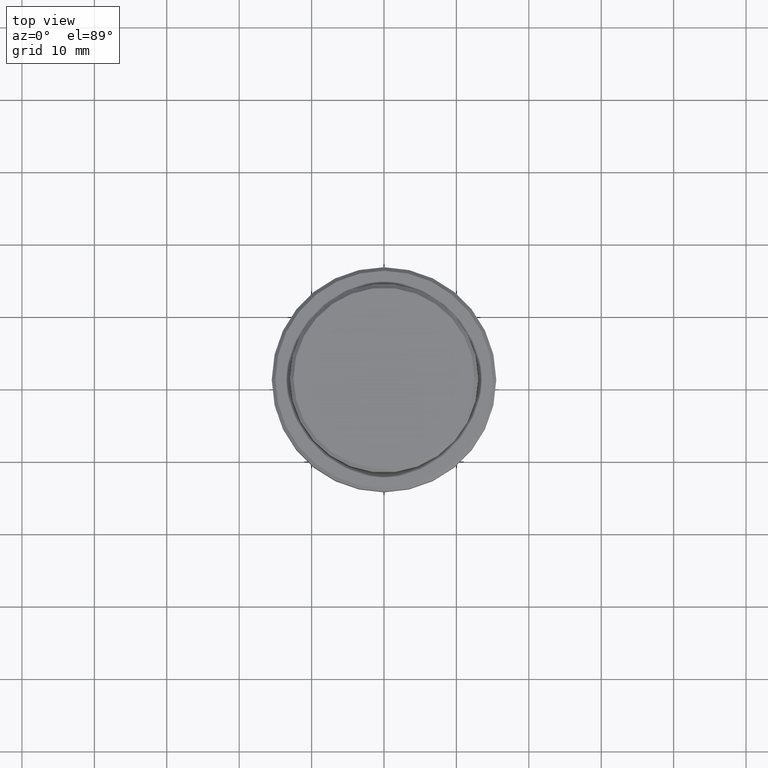
[diagram: clean part render]
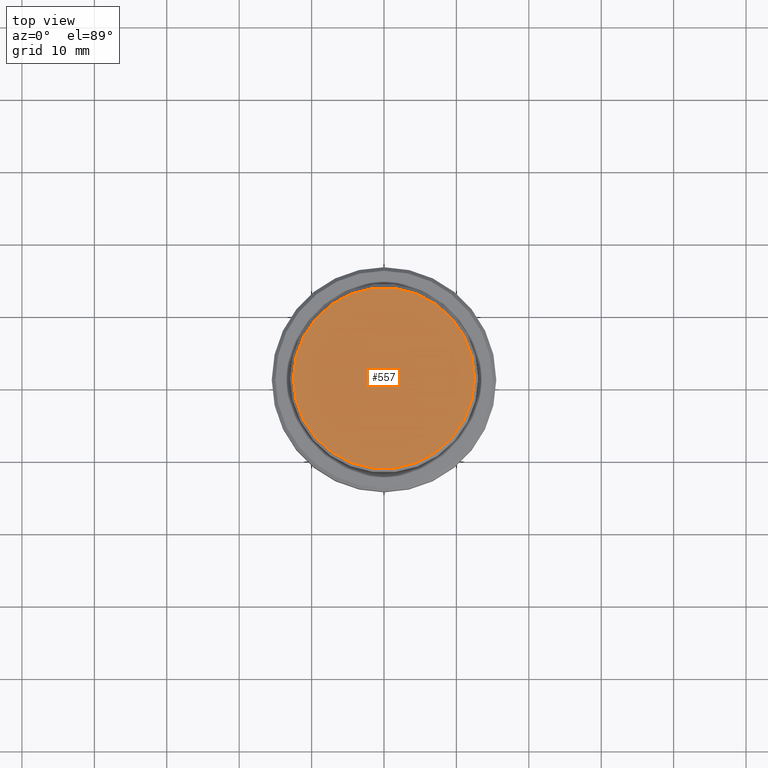
[diagram: same view with one face highlighted and labeled with its STEP entity id]
A machine part, top view. The second image highlights one B-rep face of the part: STEP entity #557.
In plain terms, the highlighted planar face has unit normal (0, -0, 1).
Its self-contained STEP definition (entity closure, byte-faithful):
#38 = EDGE_CURVE ( 'NONE', #674, #69, #932, .T. ) ;
#69 = VERTEX_POINT ( 'NONE', #1391 ) ;
#79 = EDGE_CURVE ( 'NONE', #69, #674, #1203, .T. ) ;
#153 = AXIS2_PLACEMENT_3D ( 'NONE', #1399, #1413, #650 ) ;
#266 = EDGE_LOOP ( 'NONE', ( #412, #324 ) ) ;
#290 = AXIS2_PLACEMENT_3D ( 'NONE', #856, #645, #640 ) ;
#324 = ORIENTED_EDGE ( 'NONE', *, *, #38, .T. ) ;
#412 = ORIENTED_EDGE ( 'NONE', *, *, #79, .T. ) ;
#557 = ADVANCED_FACE ( 'NONE', ( #878 ), #1166, .T. ) ;
#611 = AXIS2_PLACEMENT_3D ( 'NONE', #1390, #1180, #1402 ) ;
#640 = DIRECTION ( 'NONE',  ( 1.000000000000000000, 0.000000000000000000, 0.000000000000000000 ) ) ;
#645 = DIRECTION ( 'NONE',  ( -0.000000000000000000, -0.000000000000000000, 1.000000000000000000 ) ) ;
#650 = DIRECTION ( 'NONE',  ( 1.000000000000000000, 0.000000000000000000, 0.000000000000000000 ) ) ;
#674 = VERTEX_POINT ( 'NONE', #1227 ) ;
#856 = CARTESIAN_POINT ( 'NONE',  ( 0.000000000000000000, 0.000000000000000000, 0.000000000000000000 ) ) ;
#878 = FACE_OUTER_BOUND ( 'NONE', #266, .T. ) ;
#932 = CIRCLE ( 'NONE', #153, 12.50000000000001243 ) ;
#1166 = PLANE ( 'NONE',  #611 ) ;
#1180 = DIRECTION ( 'NONE',  ( 0.000000000000000000, -0.000000000000000000, 1.000000000000000000 ) ) ;
#1203 = CIRCLE ( 'NONE', #290, 12.50000000000001243 ) ;
#1227 = CARTESIAN_POINT ( 'NONE',  ( 12.50000000000001243, 1.561424668912876097E-15, 0.000000000000000000 ) ) ;
#1390 = CARTESIAN_POINT ( 'NONE',  ( 0.000000000000000000, 0.000000000000000000, 0.000000000000000000 ) ) ;
#1391 = CARTESIAN_POINT ( 'NONE',  ( -12.50000000000001243, 0.000000000000000000, 0.000000000000000000 ) ) ;
#1399 = CARTESIAN_POINT ( 'NONE',  ( 0.000000000000000000, 0.000000000000000000, 0.000000000000000000 ) ) ;
#1402 = DIRECTION ( 'NONE',  ( 1.000000000000000000, 0.000000000000000000, 0.000000000000000000 ) ) ;
#1413 = DIRECTION ( 'NONE',  ( -0.000000000000000000, -0.000000000000000000, 1.000000000000000000 ) ) ;